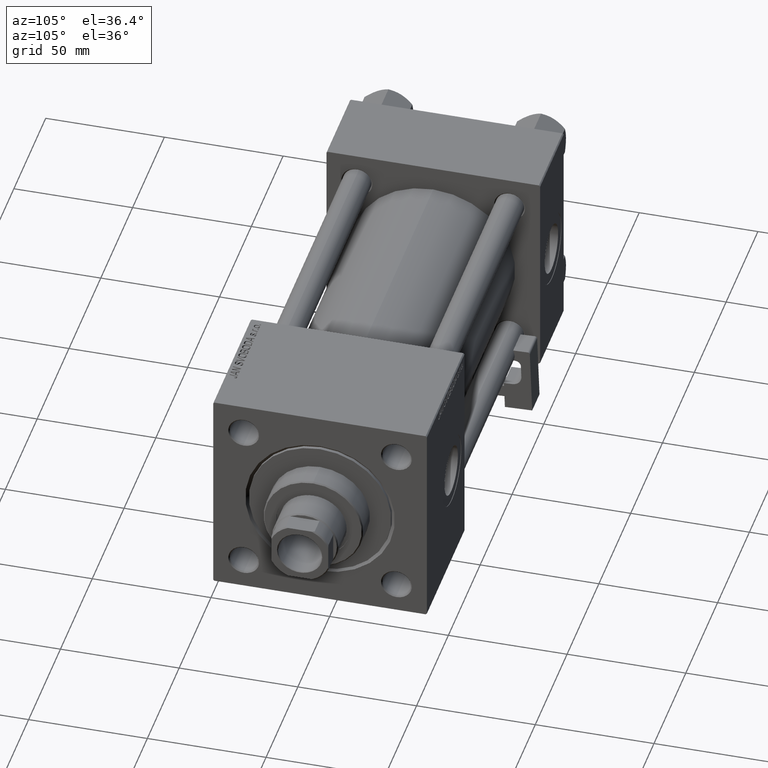
[diagram: clean part render]
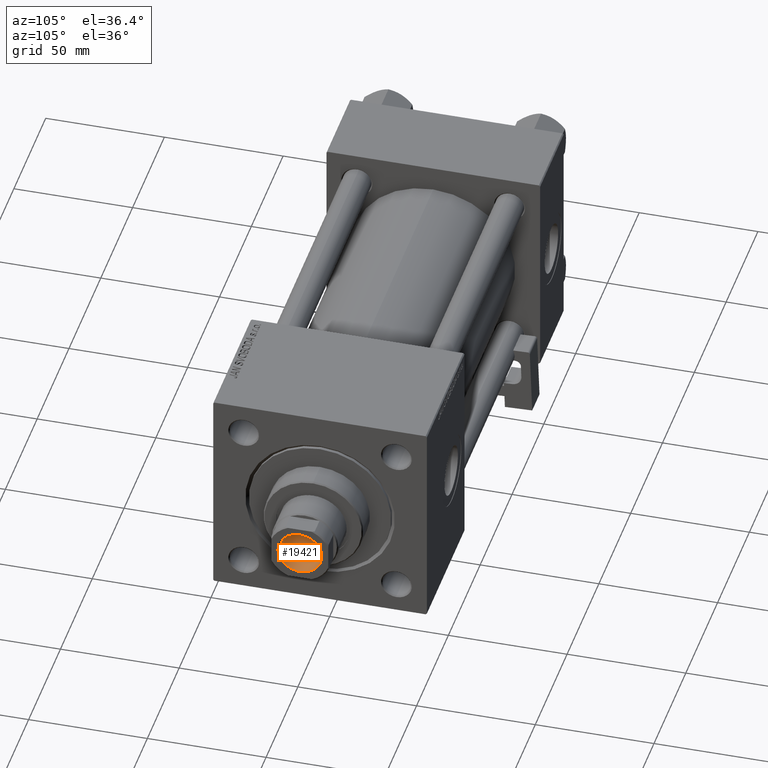
[diagram: same view with one face highlighted and labeled with its STEP entity id]
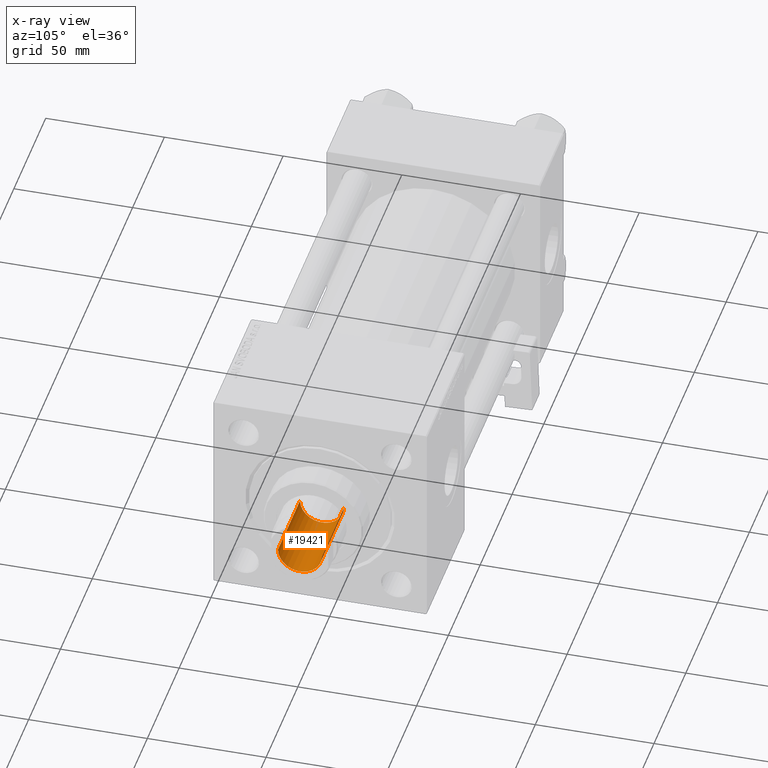
[diagram: x-ray of the same camera — body ghosted, the highlighted face saturated]
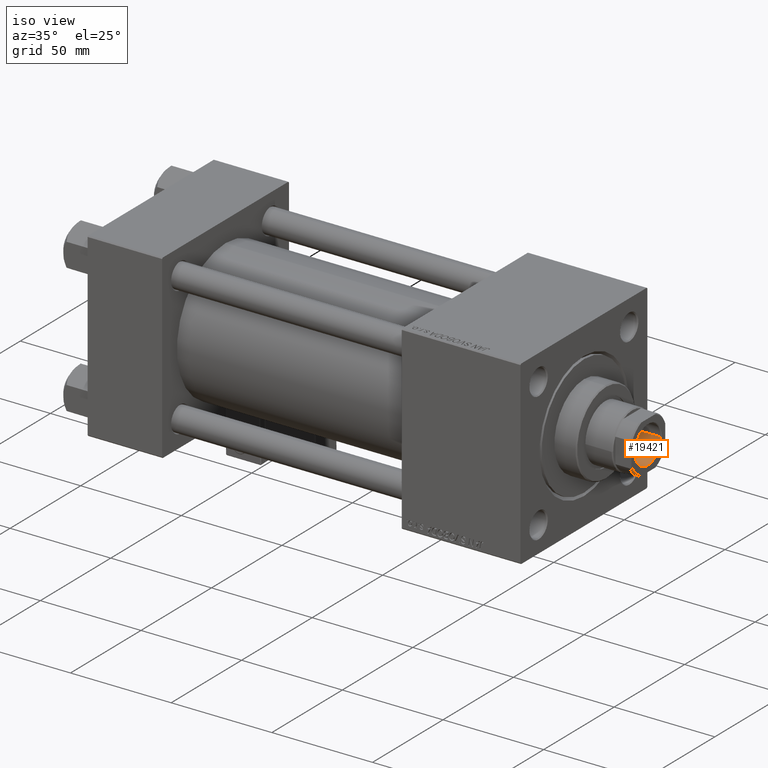
[diagram: same view with one face highlighted and labeled with its STEP entity id]
A machine part, auxiliary view. The second image highlights one B-rep face of the part: STEP entity #19421.
The next image is the same camera in x-ray: the body ghosted, the highlighted face saturated — about 1% of this face is hidden behind the body in this view.
A second angle (iso view) of the same face is appended — the face is thin or edge-on in the first view.
In plain terms, the highlighted cylindrical surface (edge-blend (fillet) strip) has radius 9.25 mm, axis along (1, 0, 0).
Its self-contained STEP definition (entity closure, byte-faithful):
#270 = AXIS2_PLACEMENT_3D ( 'NONE', #31111, #22732, #19454 ) ;
#751 = AXIS2_PLACEMENT_3D ( 'NONE', #19431, #35943, #3185 ) ;
#2865 = CARTESIAN_POINT ( 'NONE',  ( 9.249999999999994671, 0.000000000000000000, 209.7000000000000455 ) ) ;
#3185 = DIRECTION ( 'NONE',  ( 1.000000000000000000, 0.000000000000000000, 0.000000000000000000 ) ) ;
#7469 = VECTOR ( 'NONE', #37738, 1000.000000000000000 ) ;
#7504 = EDGE_CURVE ( 'NONE', #34135, #10572, #43985, .T. ) ;
#9307 = CARTESIAN_POINT ( 'NONE',  ( -9.249999999999994671, 1.132798289211300909E-15, 210.0000000000000284 ) ) ;
#9480 = VERTEX_POINT ( 'NONE', #2865 ) ;
#10572 = VERTEX_POINT ( 'NONE', #22857 ) ;
#11186 = VECTOR ( 'NONE', #27734, 1000.000000000000000 ) ;
#11807 = VERTEX_POINT ( 'NONE', #46354 ) ;
#13723 = ORIENTED_EDGE ( 'NONE', *, *, #35673, .F. ) ;
#14298 = EDGE_LOOP ( 'NONE', ( #13723, #15480, #26565, #47990 ) ) ;
#15480 = ORIENTED_EDGE ( 'NONE', *, *, #7504, .F. ) ;
#19084 = AXIS2_PLACEMENT_3D ( 'NONE', #52721, #32130, #27540 ) ;
#19421 = ADVANCED_FACE ( 'NONE', ( #31862 ), #47126, .F. ) ;
#19431 = CARTESIAN_POINT ( 'NONE',  ( 0.000000000000000000, 0.000000000000000000, 175.0000000000000284 ) ) ;
#19454 = DIRECTION ( 'NONE',  ( 1.000000000000000000, 0.000000000000000000, 0.000000000000000000 ) ) ;
#22732 = DIRECTION ( 'NONE',  ( 0.000000000000000000, 0.000000000000000000, 1.000000000000000000 ) ) ;
#22857 = CARTESIAN_POINT ( 'NONE',  ( -9.249999999999992895, 1.132798289211300712E-15, 175.0000000000000284 ) ) ;
#26565 = ORIENTED_EDGE ( 'NONE', *, *, #40273, .T. ) ;
#27540 = DIRECTION ( 'NONE',  ( 1.000000000000000000, 0.000000000000000000, 0.000000000000000000 ) ) ;
#27734 = DIRECTION ( 'NONE',  ( -0.000000000000000000, -0.000000000000000000, 1.000000000000000000 ) ) ;
#29632 = EDGE_CURVE ( 'NONE', #9480, #11807, #39212, .T. ) ;
#31111 = CARTESIAN_POINT ( 'NONE',  ( 0.000000000000000000, 0.000000000000000000, 209.7000000000000455 ) ) ;
#31518 = LINE ( 'NONE', #39123, #11186 ) ;
#31862 = FACE_OUTER_BOUND ( 'NONE', #14298, .T. ) ;
#32130 = DIRECTION ( 'NONE',  ( -0.000000000000000000, -0.000000000000000000, 1.000000000000000000 ) ) ;
#33212 = CARTESIAN_POINT ( 'NONE',  ( 9.249999999999992895, 0.000000000000000000, 175.0000000000000284 ) ) ;
#34135 = VERTEX_POINT ( 'NONE', #33212 ) ;
#35673 = EDGE_CURVE ( 'NONE', #10572, #11807, #52953, .T. ) ;
#35943 = DIRECTION ( 'NONE',  ( -0.000000000000000000, -0.000000000000000000, 1.000000000000000000 ) ) ;
#37738 = DIRECTION ( 'NONE',  ( -0.000000000000000000, -0.000000000000000000, 1.000000000000000000 ) ) ;
#39123 = CARTESIAN_POINT ( 'NONE',  ( 9.249999999999994671, 0.000000000000000000, 210.0000000000000284 ) ) ;
#39212 = CIRCLE ( 'NONE', #270, 9.249999999999994671 ) ;
#40273 = EDGE_CURVE ( 'NONE', #34135, #9480, #31518, .T. ) ;
#43985 = CIRCLE ( 'NONE', #751, 9.249999999999992895 ) ;
#46354 = CARTESIAN_POINT ( 'NONE',  ( -9.249999999999994671, 1.132798289211300909E-15, 209.7000000000000455 ) ) ;
#47126 = CYLINDRICAL_SURFACE ( 'NONE', #19084, 9.249999999999994671 ) ;
#47990 = ORIENTED_EDGE ( 'NONE', *, *, #29632, .T. ) ;
#52721 = CARTESIAN_POINT ( 'NONE',  ( 0.000000000000000000, 0.000000000000000000, 210.0000000000000284 ) ) ;
#52953 = LINE ( 'NONE', #9307, #7469 ) ;